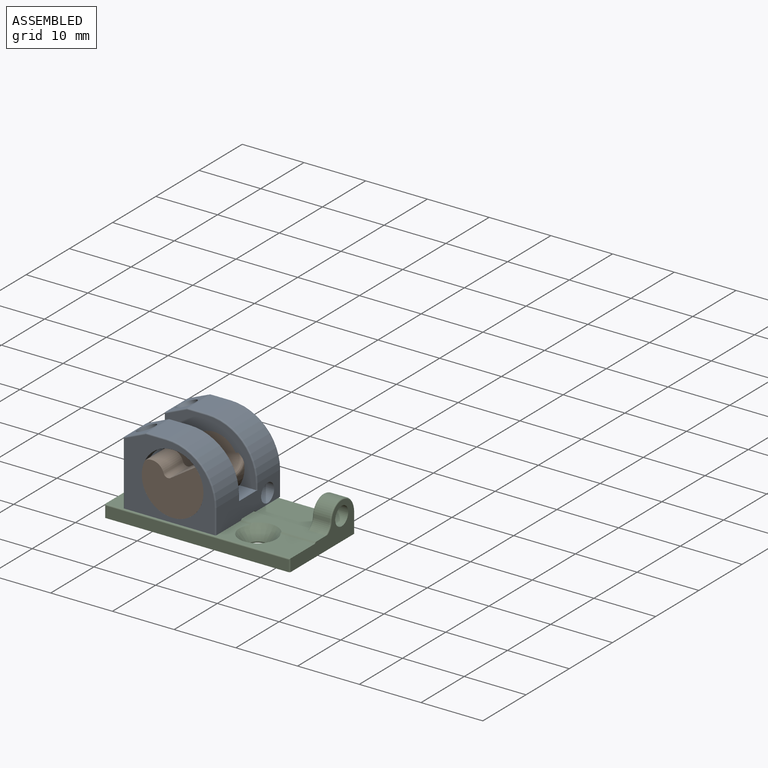
[diagram: assembled view]
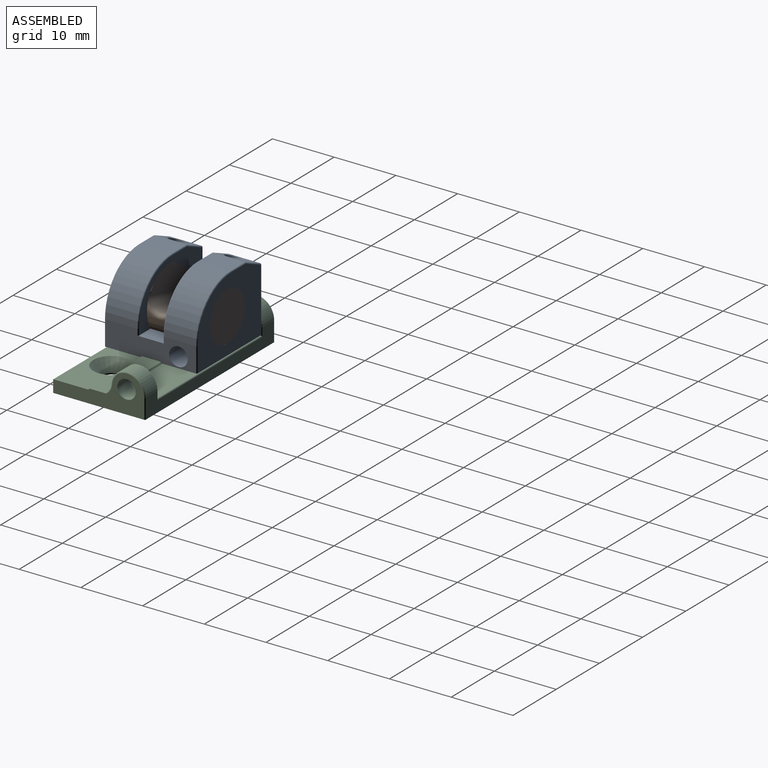
[diagram: assembled view, second angle]
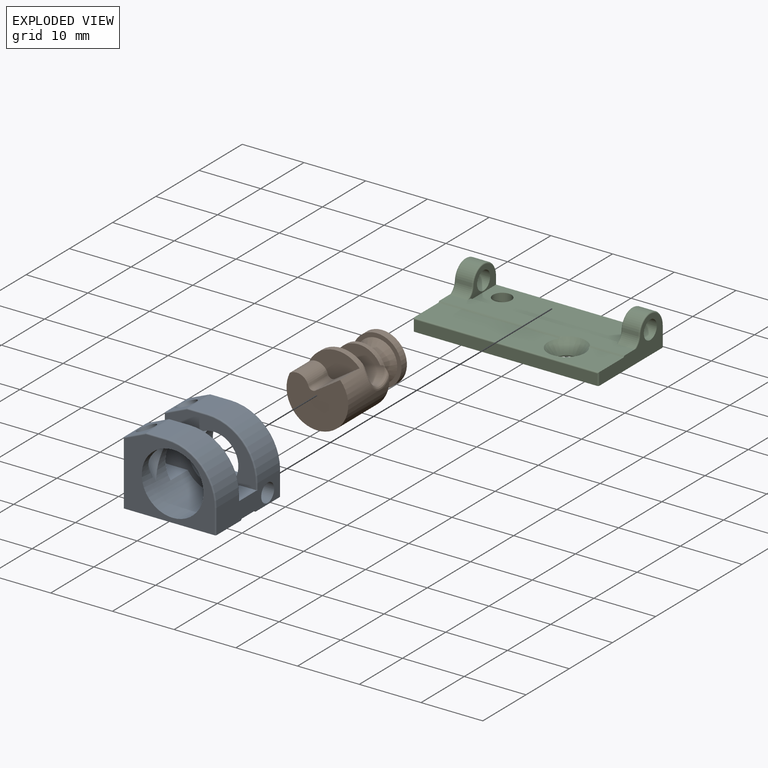
[diagram: exploded view]
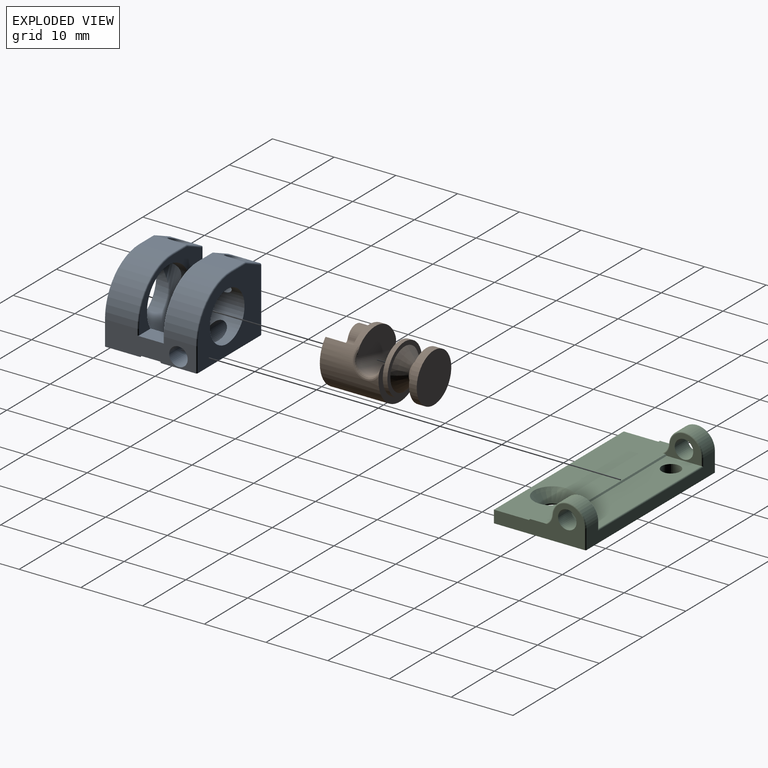
[diagram: exploded view, second angle]
ASSEMBLY  parts=3 mates=2
PART A: 56 faces, bbox 16x15.3x13.1 mm
  f0: plane 4.4x2.81mm, normal (0,0,1), area 11.3mm2, adj f5,f16,f18,f19,f38,f54
  f1: cylinder r=8mm len=8mm, axis (0,1,0), area 64.1mm2, adj f2,f5,f25,f37
  f2: plane 5.1x3.28mm, normal (0,0,1), area 16.7mm2, adj f1,f27,f33,f36
  f3: plane 5.1x3.52mm, normal (-0.39,0,0.92), area 12.4mm2, adj f28,f29,f33,f34,f55
  f4: plane 15x5.8mm, normal (0,0,-1), area 87mm2, adj f5,f6,f11,f15,f23,f24
  f5: plane 14.6x4mm, normal (1,0,0), area 46.3mm2, adj f0,f1,f4,f7,f10,f13,f14,f15
  f6: plane 14.6x10.29mm, normal (-1,0,0), area 110.4mm2, adj f4,f10,f13,f14,f15,f17,f22,f24
  f7: cylinder r=8mm len=8mm, axis (0,1,0), area 64.1mm2, adj f5,f8,f42,f53
  f8: plane 5.1x3.28mm, normal (0,0,1), area 16.7mm2, adj f7,f46,f50,f52
  f9: plane 5.39x3.81mm, normal (-0.39,0,0.92), area 11.7mm2, adj f21,f44,f45,f49,f50
  f10: plane 15x5.8mm, normal (0,0,-1), area 87mm2, adj f5,f6,f12,f13,f39,f40
  f11: plane 14.6x11.8mm, normal (0,-1,0), area 78mm2, adj f4,f19,f23,f24,f25,f27,f28
  f12: plane 14.6x11.8mm, normal (0,1,0), area 106.3mm2, adj f10,f20,f39,f40,f42,f45,f46
  f13: plane 15x0.2mm, normal (0,-0.71,-0.71), area 4.2mm2, adj f5,f6,f10,f14
  f14: plane 15x3mm, normal (0,0,-1), area 45mm2, adj f5,f6,f13,f15
  f15: plane 15x0.2mm, normal (0,0.71,-0.71), area 4.2mm2, adj f4,f5,f6,f14
  f16: plane 14.6x8.8mm, normal (0,1,0), area 47.6mm2, adj f0,f17,f19,f30,f34,f36,f37,f38
  f17: plane 4.4x3.81mm, normal (0,0,1), area 15.3mm2, adj f6,f16,f18,f19,f30,f43
  f18: plane 14.6x11.07mm, normal (0,-1,0), area 75.9mm2, adj f0,f17,f19,f20,f43,f49,f52,f53
  f19: cylinder r=5mm len=10mm, axis (0,-1,0), area 200.8mm2, adj f0,f11,f16,f17,f18,f55
  f20: cylinder r=4mm len=8mm, axis (0,1,0), area 112.7mm2, adj f12,f18,f21,f22
  f21: cylinder r=1.5mm len=5.91mm, axis (-0.74,0,0.67), area 41.4mm2, adj f9,f20
  f22: cylinder r=1.5mm len=15mm, axis (1,0,0), area 118.8mm2, adj f5,f6,f20
  f23: cylinder r=0.2mm len=4mm, axis (0,0,-1), area 1.3mm2, adj f4,f5,f11,f25
  f24: cylinder r=0.2mm len=10.29mm, axis (0,0,1), area 3.2mm2, adj f4,f6,f11,f26
  f25: torus R=7.8mm, axis (0,-1,0), area 3.9mm2, adj f1,f11,f23,f27
  f26: sphere r=0.2mm, area 0.1mm2, adj f24,f28,f29
  f27: cylinder r=0.2mm len=3.28mm, axis (1,0,0), area 1mm2, adj f2,f11,f25,f31
  f28: cylinder r=0.2mm len=3.6mm, axis (0.92,0,0.39), area 1.2mm2, adj f3,f11,f26,f31
  f29: cylinder r=0.2mm len=5.1mm, axis (0,-1,0), area 1.2mm2, adj f3,f6,f26,f32
  f30: cylinder r=0.2mm len=7.29mm, axis (0,0,-1), area 2.3mm2, adj f6,f16,f17,f32
  f31: sphere r=0.2mm, area 0mm2, adj f27,f28,f33
  f32: sphere r=0.2mm, area 0mm2, adj f29,f30,f34
  f33: cylinder r=0.2mm len=5.1mm, axis (0,1,0), area 0.4mm2, adj f2,f3,f31,f35
  f34: cylinder r=0.2mm len=3.6mm, axis (-0.92,0,-0.39), area 1.2mm2, adj f3,f16,f32,f35
  f35: sphere r=0.2mm, area 0mm2, adj f33,f34,f36
  f36: cylinder r=0.2mm len=3.28mm, axis (-1,0,0), area 1mm2, adj f2,f16,f35,f37
  f37: torus R=7.8mm, axis (0,-1,0), area 3.9mm2, adj f1,f16,f36,f38
  f38: cylinder r=0.2mm len=1mm, axis (0,0,1), area 0.3mm2, adj f0,f5,f16,f37
  f39: cylinder r=0.2mm len=10.29mm, axis (0,0,-1), area 3.2mm2, adj f6,f10,f12,f41
  f40: cylinder r=0.2mm len=4mm, axis (0,0,1), area 1.3mm2, adj f5,f10,f12,f42
  f41: sphere r=0.2mm, area 0mm2, adj f39,f44,f45
  f42: torus R=7.8mm, axis (0,-1,0), area 3.9mm2, adj f7,f12,f40,f46
  f43: cylinder r=0.2mm len=7.29mm, axis (0,0,1), area 2.3mm2, adj f6,f17,f18,f47
  f44: cylinder r=0.2mm len=5.1mm, axis (0,-1,0), area 1.2mm2, adj f6,f9,f41,f47
  f45: cylinder r=0.2mm len=3.6mm, axis (-0.92,0,-0.39), area 1.2mm2, adj f9,f12,f41,f48
  f46: cylinder r=0.2mm len=3.28mm, axis (-1,0,0), area 1mm2, adj f8,f12,f42,f48
  f47: sphere r=0.2mm, area 0mm2, adj f43,f44,f49
  f48: sphere r=0.2mm, area 0mm2, adj f45,f46,f50
  f49: cylinder r=0.2mm len=3.6mm, axis (0.92,0,0.39), area 1.2mm2, adj f9,f18,f47,f51
  f50: cylinder r=0.2mm len=5.1mm, axis (0,1,0), area 0.4mm2, adj f8,f9,f48,f51
  f51: sphere r=0.2mm, area 0mm2, adj f49,f50,f52
  f52: cylinder r=0.2mm len=3.28mm, axis (1,0,0), area 1mm2, adj f8,f18,f51,f53
  f53: torus R=7.8mm, axis (0,1,0), area 3.9mm2, adj f7,f18,f52,f54
  f54: cylinder r=0.2mm len=1mm, axis (0,0,-1), area 0.3mm2, adj f0,f5,f18,f53
  f55: cylinder r=1.5mm len=8.04mm, axis (-0.39,0,0.92), area 41mm2, adj f3,f19
PART B: 19 faces, bbox 10.2x15.2x10.2 mm
  f0: plane 9.77x7.65mm, normal (0,1,0), area 15.6mm2, adj f1,f3,f15,f17,f18
  f1: cylinder r=5mm len=10mm, axis (0,-1,0), area 180.1mm2, adj f0,f2,f10,f12,f13,f16,f17,f18
  f2: plane 10x8.83mm, normal (0,-1,0), area 59.1mm2, adj f1,f10,f11,f12
  f3: cylinder r=4mm len=8mm, axis (0,1,0), area 18.8mm2, adj f0,f5,f14
  f4: cone r=3.31mm half-angle=45deg, axis (0,-1,0), area 37.8mm2, adj f5,f7
  f5: plane 8x8mm, normal (0,1,0), area 15.9mm2, adj f3,f4
  f6: plane 8x8mm, normal (0,-1,0), area 15.9mm2, adj f7,f9
  f7: cone r=1.56mm half-angle=45deg, axis (0,1,0), area 37.8mm2, adj f4,f6
  f8: plane 8x8mm, normal (0,1,0), area 50.3mm2, adj f9
  f9: cylinder r=4mm len=8mm, axis (0,1,0), area 31.4mm2, adj f6,f8
  f10: cylinder r=2mm len=4.5mm, axis (0,-1,0), area 16.7mm2, adj f1,f2,f11,f13
  f11: cylinder r=0.75mm len=4.5mm, axis (0,-1,0), area 6.3mm2, adj f2,f10,f12,f13
  f12: plane 4.5x3.63mm, normal (-0.65,0,0.76), area 21.6mm2, adj f1,f2,f11,f13
  f13: plane 7.93x4.49mm, normal (0,-1,0), area 19.4mm2, adj f1,f10,f11,f12
  f14: plane 7.26x4.44mm, normal (0,-1,0), area 17.2mm2, adj f3,f15
  f15: cylinder r=2mm len=8.91mm, axis (-0.93,0,-0.36), area 55.1mm2, adj f0,f14,f16,f17,f18
  f16: plane 8.81x5.78mm, normal (0,1,0), area 28.6mm2, adj f1,f15,f17,f18
  f17: bspline ~5x4.19mm, area 6.2mm2, adj f0,f1,f15,f16
  f18: bspline ~5x4.76mm, area 6.2mm2, adj f0,f1,f15,f16
PART C: 44 faces, bbox 30x15.2x6.4 mm
  f0: plane 19.6x0.2mm, normal (0,-0.71,0.71), area 5.5mm2, adj f8,f10,f13,f41
  f1: plane 29.6x3.2mm, normal (0,1,0), area 60.6mm2, adj f5,f19,f20,f21,f28,f29,f30,f34
  f2: cylinder r=2.5mm len=2.6mm, axis (1,0,0), area 9.8mm2, adj f3,f19,f26,f36
  f3: cylinder r=2mm len=2.6mm, axis (1,0,0), area 5.5mm2, adj f2,f8,f25,f37
  f4: cylinder r=1.5mm len=3mm, axis (1,0,0), area 28.3mm2, adj f13,f17
  f5: plane 30x15mm, normal (0,0,-1), area 435.8mm2, adj f1,f11,f13,f14,f21,f34,f38,f40
  f6: cylinder r=2.5mm len=2.6mm, axis (1,0,0), area 9.8mm2, adj f7,f20,f23,f32
  f7: cylinder r=2mm len=2.6mm, axis (1,0,0), area 5.5mm2, adj f6,f8,f24,f33
  f8: plane 30x3mm, normal (0,0,1), area 82.4mm2, adj f0,f3,f7,f9,f13,f14,f15,f17
  f9: plane 5.6x0.2mm, normal (0,-0.71,0.71), area 1.6mm2, adj f8,f10,f14,f41
  f10: plane 30x5.6mm, normal (0,0,1), area 143.8mm2, adj f0,f9,f13,f14,f39,f41
  f11: plane 29.6x1.8mm, normal (0,-1,0), area 53.3mm2, adj f5,f38,f39,f40
  f12: cylinder r=1.5mm len=3mm, axis (1,0,0), area 28.3mm2, adj f14,f18
  f13: plane 14.6x6mm, normal (-1,0,0), area 41mm2, adj f0,f4,f5,f8,f10,f21,f22,f23
  f14: plane 14.6x6mm, normal (1,0,0), area 41mm2, adj f5,f8,f9,f10,f12,f34,f35,f36
  f15: plane 24x0.2mm, normal (0,0.71,0.71), area 6.8mm2, adj f8,f16,f17,f18
  f16: plane 24x5.6mm, normal (0,0,1), area 127.3mm2, adj f15,f17,f18,f29,f43
  f17: plane 6.03x4mm, normal (1,0,0), area 11.1mm2, adj f4,f8,f15,f16,f30,f31,f32,f33
  f18: plane 6.03x4mm, normal (-1,0,0), area 11.1mm2, adj f8,f12,f15,f16,f25,f26,f27,f28
  f19: cylinder r=3mm len=3mm, axis (-1,0,0), area 12.3mm2, adj f1,f2,f27,f35
  f20: cylinder r=3mm len=3mm, axis (-1,0,0), area 12.3mm2, adj f1,f6,f22,f31
  f21: cylinder r=0.2mm len=3.2mm, axis (0,0,-1), area 1mm2, adj f1,f5,f13,f22
  f22: torus R=2.8mm, axis (1,0,0), area 1.4mm2, adj f13,f20,f21,f23
  f23: torus R=2.3mm, axis (1,0,0), area 1.1mm2, adj f6,f13,f22,f24
  f24: torus R=2.2mm, axis (1,0,0), area 0.6mm2, adj f7,f8,f13,f23
  f25: torus R=2.2mm, axis (1,0,0), area 0.6mm2, adj f3,f8,f18,f26
  f26: torus R=2.3mm, axis (1,0,0), area 1.1mm2, adj f2,f18,f25,f27
  f27: torus R=2.8mm, axis (1,0,0), area 1.4mm2, adj f18,f19,f26,f28
  f28: cylinder r=0.2mm len=1.4mm, axis (0,0,-1), area 0.4mm2, adj f1,f18,f27,f29
  f29: cylinder r=0.2mm len=24.4mm, axis (-1,0,0), area 7.6mm2, adj f1,f16,f28,f30
  f30: cylinder r=0.2mm len=1.4mm, axis (0,0,1), area 0.4mm2, adj f1,f17,f29,f31
  f31: torus R=2.8mm, axis (1,0,0), area 1.4mm2, adj f17,f20,f30,f32
  f32: torus R=2.3mm, axis (1,0,0), area 1.1mm2, adj f6,f17,f31,f33
  f33: torus R=2.2mm, axis (1,0,0), area 0.6mm2, adj f7,f8,f17,f32
  f34: cylinder r=0.2mm len=3.2mm, axis (0,0,1), area 1mm2, adj f1,f5,f14,f35
  f35: torus R=2.8mm, axis (1,0,0), area 1.4mm2, adj f14,f19,f34,f36
  f36: torus R=2.3mm, axis (1,0,0), area 1.1mm2, adj f2,f14,f35,f37
  f37: torus R=2.2mm, axis (1,0,0), area 0.6mm2, adj f3,f8,f14,f36
  f38: cylinder r=0.2mm len=2mm, axis (0,0,1), area 0.6mm2, adj f5,f11,f13,f39
  f39: cylinder r=0.2mm len=30mm, axis (-1,0,0), area 9.4mm2, adj f10,f11,f38,f40
  f40: cylinder r=0.2mm len=2mm, axis (0,0,-1), area 0.6mm2, adj f5,f11,f14,f39
  f41: cone r=1.5mm half-angle=39.8deg, axis (0,0,1), area 34.6mm2, adj f0,f8,f9,f10,f42
  f42: cylinder r=1.5mm len=3mm, axis (0,0,1), area 1.9mm2, adj f5,f41
  f43: cylinder r=1.5mm len=3mm, axis (0,0,1), area 18.8mm2, adj f5,f16
PLACE A t=(-12,0,0.19)mm
PLACE B rot(axis=(0,1,0),7.5deg) t=(-13.05,0,-0.26)mm
PLACE C at identity fixed
MATE planar A.f11 <-> C.f11  axis (0,-1,0) through (-23.8,-7.5,2.19)mm
MATE revolute B.f1 <-> A.f19  axis (0,1,0) through (-16,7.5,7.93)mm
